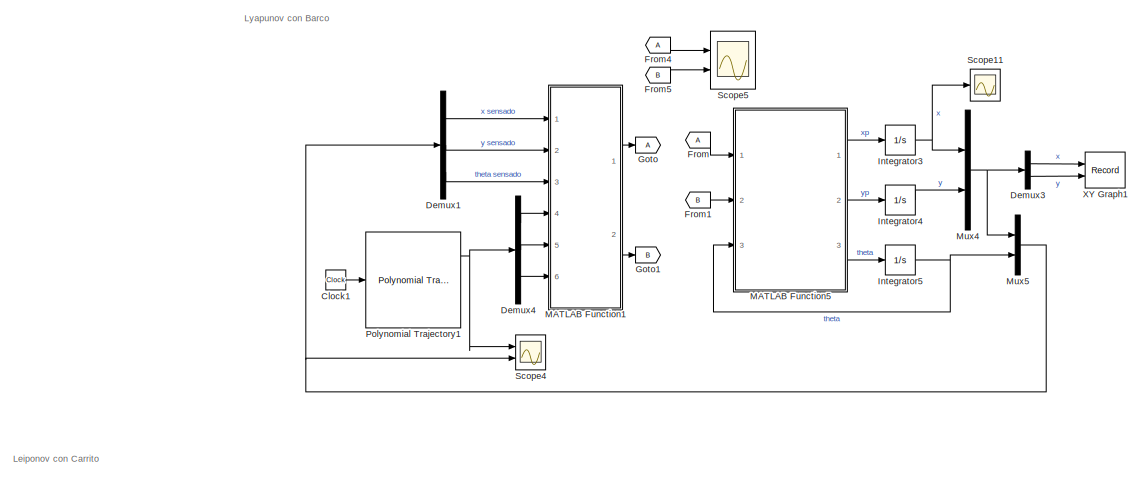
[diagram: root canvas - part 1/2, full width, top band]
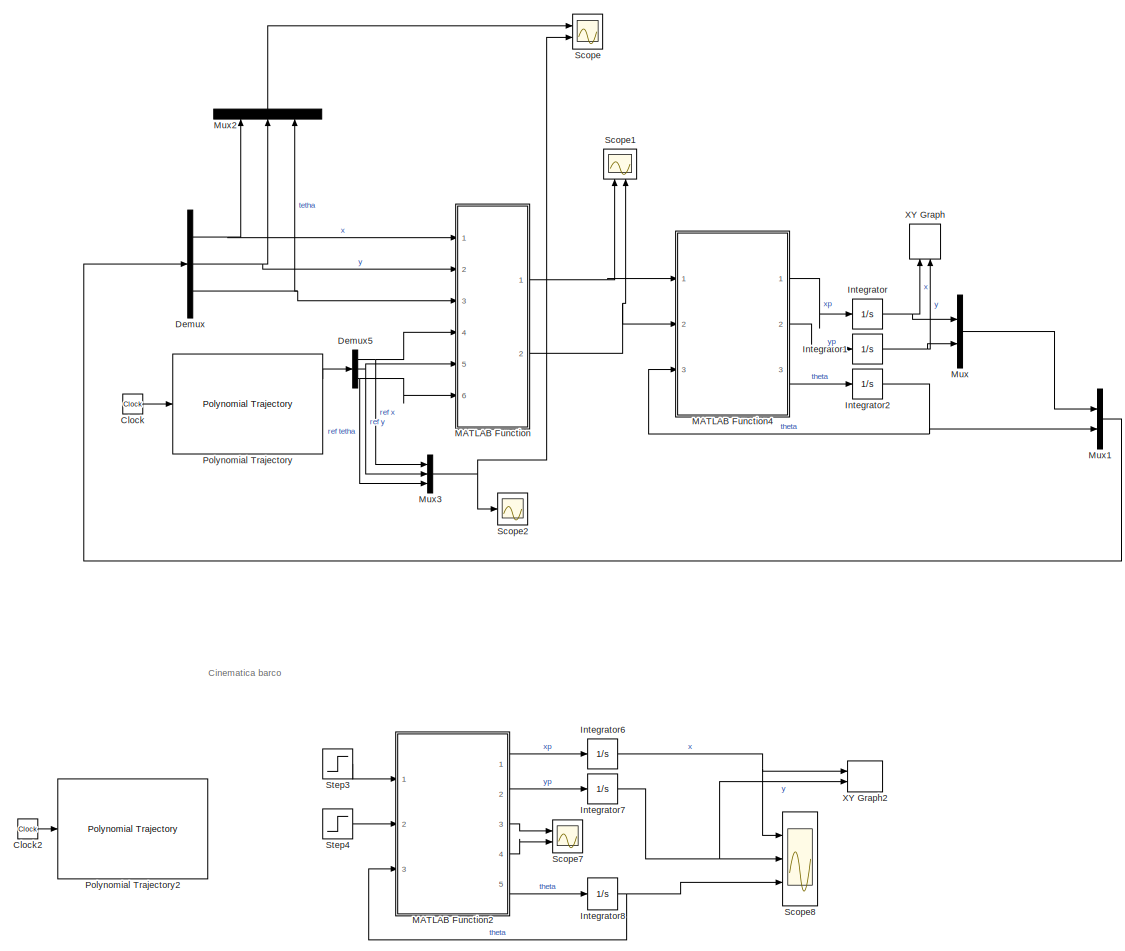
[diagram: root canvas - part 2/2, full width, bottom band]
MODEL slx_9371a2ca1c5e
KIND model
CONFIG AbsTol = auto
CONFIG EnableMultiTasking = off
CONFIG FixedStep = auto
CONFIG MaxStep = auto
CONFIG MinStep = auto
CONFIG RelTol = 1e-3
CONFIG SampleTimeConstraint = Unconstrained
CONFIG SolverName = VariableStepAuto
CONFIG StartTime = 0.0
CONFIG StopTime = 600
BLOCK [Clock] Clock
BLOCK [Clock] Clock1
BLOCK [Clock] Clock2
  Commented = on
BLOCK [Demux] Demux
  Outputs = 3
  Ports = [1, 3]
BLOCK [Demux] Demux1
  Outputs = 3
  Ports = [1, 3]
BLOCK [Demux] Demux3
  Outputs = 2
  Ports = [1, 2]
BLOCK [Demux] Demux4
  Outputs = 3
  Ports = [1, 3]
BLOCK [Demux] Demux5
  Outputs = 3
  Ports = [1, 3]
BLOCK [From] From
BLOCK [From] From1
  GotoTag = B
BLOCK [From] From4
BLOCK [From] From5
  GotoTag = B
BLOCK [Goto] Goto
BLOCK [Goto] Goto1
  GotoTag = B
BLOCK [Integrator] Integrator
  InitialCondition = 0.0001
  Ports = [1, 1]
BLOCK [Integrator] Integrator1
  Ports = [1, 1]
BLOCK [Integrator] Integrator2
  Ports = [1, 1]
BLOCK [Integrator] Integrator3
  InitialCondition = 10
  Ports = [1, 1]
BLOCK [Integrator] Integrator4
  InitialCondition = 5
  Ports = [1, 1]
BLOCK [Integrator] Integrator5
  InitialCondition = 2.7
  Ports = [1, 1]
BLOCK [Integrator] Integrator6
  Commented = on
  InitialCondition = 5
  Ports = [1, 1]
BLOCK [Integrator] Integrator7
  Commented = on
  InitialCondition = 5
  Ports = [1, 1]
BLOCK [Integrator] Integrator8
  Commented = on
  Ports = [1, 1]
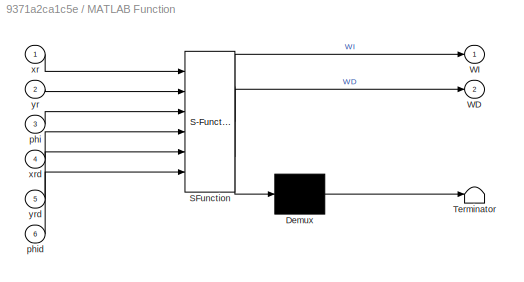
BLOCK [SubSystem] MATLAB Function
  ErrorFcn = Stateflow.Translate.translate
  PermitHierarchicalResolution = ExplicitOnly
  Ports = [6, 2]
  RequestExecContextInheritance = off
  SFBlockType = MATLAB Function
  TreatAsAtomicUnit = on
BLOCK [Demux] MATLAB Function/ Demux 
  Outputs = 1
  Ports = [1, 1]
BLOCK [S-Function] MATLAB Function/ SFunction 
  EnableBusSupport = on
  FunctionName = sf_sfun
  PortCounts = [6 3]
  Ports = [6, 3]
  SFcnIsStateOwnerBlock = off
  SFunctionDeploymentMode = off
  Tag = Stateflow S-Function 2
BLOCK [Terminator] MATLAB Function/ Terminator 
BLOCK [Outport] MATLAB Function/WD
  Port = 2
BLOCK [Outport] MATLAB Function/WI
BLOCK [Inport] MATLAB Function/phi
  Port = 3
BLOCK [Inport] MATLAB Function/phid
  Port = 6
BLOCK [Inport] MATLAB Function/xr
BLOCK [Inport] MATLAB Function/xrd
  Port = 4
BLOCK [Inport] MATLAB Function/yr
  Port = 2
BLOCK [Inport] MATLAB Function/yrd
  Port = 5
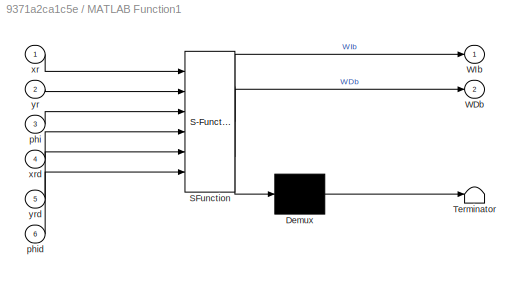
BLOCK [SubSystem] MATLAB Function1
  ErrorFcn = Stateflow.Translate.translate
  PermitHierarchicalResolution = ExplicitOnly
  Ports = [6, 2]
  RequestExecContextInheritance = off
  SFBlockType = MATLAB Function
  TreatAsAtomicUnit = on
BLOCK [Demux] MATLAB Function1/ Demux 
  Outputs = 1
  Ports = [1, 1]
BLOCK [S-Function] MATLAB Function1/ SFunction 
  EnableBusSupport = on
  FunctionName = sf_sfun
  PortCounts = [6 3]
  Ports = [6, 3]
  SFcnIsStateOwnerBlock = off
  SFunctionDeploymentMode = off
  Tag = Stateflow S-Function 1
BLOCK [Terminator] MATLAB Function1/ Terminator 
BLOCK [Outport] MATLAB Function1/WDb
  Port = 2
BLOCK [Outport] MATLAB Function1/WIb
BLOCK [Inport] MATLAB Function1/phi
  Port = 3
BLOCK [Inport] MATLAB Function1/phid
  Port = 6
BLOCK [Inport] MATLAB Function1/xr
BLOCK [Inport] MATLAB Function1/xrd
  Port = 4
BLOCK [Inport] MATLAB Function1/yr
  Port = 2
BLOCK [Inport] MATLAB Function1/yrd
  Port = 5
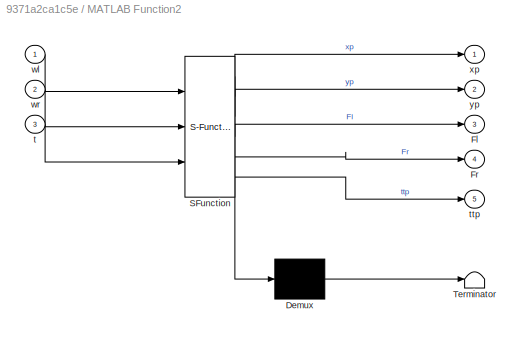
BLOCK [SubSystem] MATLAB Function2
  Commented = on
  ErrorFcn = Stateflow.Translate.translate
  PermitHierarchicalResolution = ExplicitOnly
  Ports = [3, 5]
  RequestExecContextInheritance = off
  SFBlockType = MATLAB Function
  TreatAsAtomicUnit = on
BLOCK [Demux] MATLAB Function2/ Demux 
  Outputs = 1
  Ports = [1, 1]
BLOCK [S-Function] MATLAB Function2/ SFunction 
  EnableBusSupport = on
  FunctionName = sf_sfun
  PortCounts = [3 6]
  Ports = [3, 6]
  SFcnIsStateOwnerBlock = off
  SFunctionDeploymentMode = off
  Tag = Stateflow S-Function 4
BLOCK [Terminator] MATLAB Function2/ Terminator 
BLOCK [Outport] MATLAB Function2/Fl
  Port = 3
BLOCK [Outport] MATLAB Function2/Fr
  Port = 4
BLOCK [Inport] MATLAB Function2/t
  Port = 3
BLOCK [Outport] MATLAB Function2/ttp
  Port = 5
BLOCK [Inport] MATLAB Function2/wl
BLOCK [Inport] MATLAB Function2/wr
  Port = 2
BLOCK [Outport] MATLAB Function2/xp
BLOCK [Outport] MATLAB Function2/yp
  Port = 2
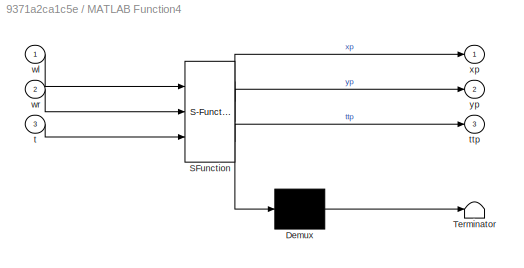
BLOCK [SubSystem] MATLAB Function4
  ErrorFcn = Stateflow.Translate.translate
  PermitHierarchicalResolution = ExplicitOnly
  Ports = [3, 3]
  RequestExecContextInheritance = off
  SFBlockType = MATLAB Function
  TreatAsAtomicUnit = on
BLOCK [Demux] MATLAB Function4/ Demux 
  Outputs = 1
  Ports = [1, 1]
BLOCK [S-Function] MATLAB Function4/ SFunction 
  EnableBusSupport = on
  FunctionName = sf_sfun
  PortCounts = [3 4]
  Ports = [3, 4]
  SFcnIsStateOwnerBlock = off
  SFunctionDeploymentMode = off
  Tag = Stateflow S-Function 3
BLOCK [Terminator] MATLAB Function4/ Terminator 
BLOCK [Inport] MATLAB Function4/t
  Port = 3
BLOCK [Outport] MATLAB Function4/ttp
  Port = 3
BLOCK [Inport] MATLAB Function4/wl
BLOCK [Inport] MATLAB Function4/wr
  Port = 2
BLOCK [Outport] MATLAB Function4/xp
BLOCK [Outport] MATLAB Function4/yp
  Port = 2
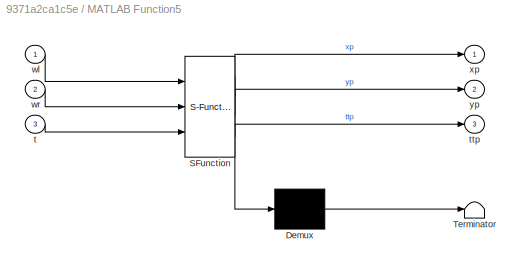
BLOCK [SubSystem] MATLAB Function5
  ErrorFcn = Stateflow.Translate.translate
  PermitHierarchicalResolution = ExplicitOnly
  Ports = [3, 3]
  RequestExecContextInheritance = off
  SFBlockType = MATLAB Function
  TreatAsAtomicUnit = on
BLOCK [Demux] MATLAB Function5/ Demux 
  Outputs = 1
  Ports = [1, 1]
BLOCK [S-Function] MATLAB Function5/ SFunction 
  EnableBusSupport = on
  FunctionName = sf_sfun
  PortCounts = [3 4]
  Ports = [3, 4]
  SFcnIsStateOwnerBlock = off
  SFunctionDeploymentMode = off
  Tag = Stateflow S-Function 6
BLOCK [Terminator] MATLAB Function5/ Terminator 
BLOCK [Inport] MATLAB Function5/t
  Port = 3
BLOCK [Outport] MATLAB Function5/ttp
  Port = 3
BLOCK [Inport] MATLAB Function5/wl
BLOCK [Inport] MATLAB Function5/wr
  Port = 2
BLOCK [Outport] MATLAB Function5/xp
BLOCK [Outport] MATLAB Function5/yp
  Port = 2
BLOCK [Mux] Mux
  DisplayOption = bar
  Inputs = 2
  Ports = [2, 1]
BLOCK [Mux] Mux1
  DisplayOption = bar
  Inputs = 2
  Ports = [2, 1]
BLOCK [Mux] Mux2
  DisplayOption = bar
  Inputs = 3
  NameLocation = right
  Ports = [3, 1]
BLOCK [Mux] Mux3
  DisplayOption = bar
  Inputs = 3
  Ports = [3, 1]
BLOCK [Mux] Mux4
  DisplayOption = bar
  Inputs = 2
  Ports = [2, 1]
BLOCK [Mux] Mux5
  DisplayOption = bar
  Inputs = 2
  Ports = [2, 1]
BLOCK [Reference] Polynomial Trajectory  REF=robotcorelib/Polynomial Trajectory
  Ports = [1, 3]
  SourceBlock = robotcorelib/Polynomial Trajectory
  SourceProductBaseCode = RO,NV,RR,UV
  SourceType = robotics.slcore.internal.block.PolyTrajSys
BLOCK [Reference] Polynomial Trajectory1  REF=robotcorelib/Polynomial Trajectory
  Ports = [1, 3]
  SourceBlock = robotcorelib/Polynomial Trajectory
  SourceProductBaseCode = RO,NV,RR,UV
  SourceType = robotics.slcore.internal.block.PolyTrajSys
BLOCK [Reference] Polynomial Trajectory2  REF=robotcorelib/Polynomial Trajectory
  Commented = on
  Ports = [1, 3]
  SourceBlock = robotcorelib/Polynomial Trajectory
  SourceProductBaseCode = RO,NV,RR,UV
  SourceType = robotics.slcore.internal.block.PolyTrajSys
BLOCK [Scope] Scope
  Floating = off
  NumInputPorts = 2
  Ports = [2]
  ScopeSpecificationString = Simulink.scopes.TimeScopeBlockCfg('CurrentConfiguration', extmgr.ConfigurationSet(extmgr.Configuration('Core','General UI',true),extmgr.Configuration('Core','Source UI',true),extmgr.Configuration('Sources','WiredSimulink',true),extmgr.Configuration('Visuals','Time Domain',true,'SerializedDisplays',{struct('MinYLimReal','-1.25','MaxYLimReal','11.25','YLabelReal','','MinYLimMag','0.00000','MaxYLimMa...<+1582ch>
BLOCK [Scope] Scope1
  Floating = off
  NameLocation = right
  NumInputPorts = 2
  Ports = [2]
  ScopeSpecificationString = Simulink.scopes.TimeScopeBlockCfg('CurrentConfiguration', extmgr.ConfigurationSet(extmgr.Configuration('Core','General UI',true),extmgr.Configuration('Core','Source UI',true),extmgr.Configuration('Sources','WiredSimulink',true,'DataLoggingVariableName','ScopeData1'),extmgr.Configuration('Visuals','Time Domain',true,'SerializedDisplays',{struct('MinYLimReal','-13.14108','MaxYLimReal','13.13955','YL...<+1641ch>
BLOCK [Scope] Scope11
  Floating = off
  NumInputPorts = 1
  Ports = [1]
  ScopeSpecificationString = Simulink.scopes.TimeScopeBlockCfg('CurrentConfiguration', extmgr.ConfigurationSet(extmgr.Configuration('Core','General UI',true),extmgr.Configuration('Core','Source UI',true),extmgr.Configuration('Sources','WiredSimulink',true,'DataLoggingVariableName','ScopeData1'),extmgr.Configuration('Visuals','Time Domain',true,'SerializedDisplays',{struct('MinYLimReal','-17.86946','MaxYLimReal','1.99661','YLa...<+1364ch>
BLOCK [Scope] Scope2
  Floating = off
  NumInputPorts = 1
  Ports = [1]
  ScopeSpecificationString = Simulink.scopes.TimeScopeBlockCfg('CurrentConfiguration', extmgr.ConfigurationSet(extmgr.Configuration('Core','General UI',true),extmgr.Configuration('Core','Source UI',true),extmgr.Configuration('Sources','WiredSimulink',true,'DataLoggingVariableName','ScopeData1'),extmgr.Configuration('Visuals','Time Domain',true,'SerializedDisplays',{struct('MinYLimReal','-0.625','MaxYLimReal','5.625','YLabelRe...<+1816ch>
BLOCK [Scope] Scope4
  Floating = off
  NumInputPorts = 2
  Ports = [2]
  ScopeSpecificationString = Simulink.scopes.TimeScopeBlockCfg('CurrentConfiguration', extmgr.ConfigurationSet(extmgr.Configuration('Core','General UI',true),extmgr.Configuration('Core','Source UI',true),extmgr.Configuration('Sources','WiredSimulink',true,'DataLoggingVariableName','ScopeData1'),extmgr.Configuration('Visuals','Time Domain',true,'SerializedDisplays',{struct('MinYLimReal','-1.47653','MaxYLimReal','13.28879','YLa...<+1696ch>
BLOCK [Scope] Scope5
  Floating = off
  NumInputPorts = 2
  Ports = [2]
  ScopeSpecificationString = Simulink.scopes.TimeScopeBlockCfg('CurrentConfiguration', extmgr.ConfigurationSet(extmgr.Configuration('Core','General UI',true),extmgr.Configuration('Core','Source UI',true),extmgr.Configuration('Sources','WiredSimulink',true,'DataLoggingVariableName','ScopeData2'),extmgr.Configuration('Visuals','Time Domain',true,'SerializedDisplays',{struct('MinYLimReal','-0.2777','MaxYLimReal','1.50894','YLabe...<+1605ch>
BLOCK [Scope] Scope7
  Commented = on
  Floating = off
  NumInputPorts = 2
  Ports = [2]
  ScopeSpecificationString = Simulink.scopes.TimeScopeBlockCfg('CurrentConfiguration', extmgr.ConfigurationSet(extmgr.Configuration('Core','General UI',true),extmgr.Configuration('Core','Source UI',true),extmgr.Configuration('Sources','WiredSimulink',true,'DataLoggingVariableName','ScopeData1'),extmgr.Configuration('Visuals','Time Domain',true,'SerializedDisplays',{struct('MinYLimReal','0.87624','MaxYLimReal','6.13368','YLabe...<+1423ch>
BLOCK [Scope] Scope8
  Commented = on
  Floating = off
  NumInputPorts = 3
  Ports = [3]
  ScopeSpecificationString = Simulink.scopes.TimeScopeBlockCfg('CurrentConfiguration', extmgr.ConfigurationSet(extmgr.Configuration('Core','General UI',true),extmgr.Configuration('Core','Source UI',true),extmgr.Configuration('Sources','WiredSimulink',true,'DataLoggingVariableName','ScopeData2'),extmgr.Configuration('Visuals','Time Domain',true,'SerializedDisplays',{struct('MinYLimReal','-94.05485','MaxYLimReal','58.41355','YL...<+1489ch>
BLOCK [Step] Step3
  After = 10
  Commented = on
  SampleTime = 0
  Time = 0
BLOCK [Step] Step4
  After = 5
  Commented = on
  SampleTime = 0
  Time = 0
BLOCK [Record] XY Graph
  CompatibilityTag = XY
  FileSettingsInternal = {"entries":[{"content":{"excelSettings":{"content":{},"type":"Streamout.ExcelSettings"}},"type":"Streamout.FileSettingStorage","uuid":"7295fb2b-ff57-43ce-bb86-fdd5f6b61bc5"}],"packageUris":["http://schema.mathworks.com/mf0/streamout_blocks/R2020a"],"version":"1.0"}
  Layout = [1 1]
  NameLocation = right
  Ports = [2]
  SignalsInternal = {"entries":[{"content":{"signals":[{"content":{"blockPath":["Diagrma_Base2/XY Graph"],"channel":[],"dimensions":[1],"domain":"Diagrma_Base2/XY Graph","lineColor":"#a2142f","plots":[1],"port":1,"sid":[],"signalID":17,"signalName":"x"},"type":"RecordBlkView.Signal","uuid":"777eca82-6aae-4ff1-8555-769b58b9b1a9"},{"content":{"blockPath":["Diagrma_Base2/XY Graph"],"channel":[],"dimensions":[1],"domain"...<+363ch>
  VisualizationBindings = {"xyplotplugin":{"info":[{"series":[{"bindingParametersList":[{"parameter":"X-Axis","signalID":17,"signalName":"x"},{"parameter":"Y-Axis","signalID":20,"signalName":"y"}],"seriesID":12843}],"subplotID":1}]}}
BLOCK [Record] XY Graph1
  CompatibilityTag = XY
  FileSettingsInternal = {"entries":[{"content":{"excelSettings":{"content":{},"type":"Streamout.ExcelSettings"}},"type":"Streamout.FileSettingStorage","uuid":"a2b37473-8bde-4ada-a6ad-28720db650b0"}],"packageUris":["http://schema.mathworks.com/mf0/streamout_blocks/R2020a"],"version":"1.0"}
  Layout = [1 1]
  Ports = [2]
  SignalsInternal = {"entries":[{"content":{"signals":[{"content":{"blockPath":["Diagrma_Base2/XY Graph1"],"channel":[],"dimensions":[1],"domain":"Diagrma_Base2/XY Graph1","lineColor":"#a2142f","plots":[1],"port":1,"sid":[],"signalID":9,"signalName":"x"},"type":"RecordBlkView.Signal","uuid":"0c049299-8119-4ead-a456-183b3d2d228e"},{"content":{"blockPath":["Diagrma_Base2/XY Graph1"],"channel":[],"dimensions":[1],"domai...<+366ch>
  VisualizationBindings = {"xyplotplugin":{"info":[{"series":[{"bindingParametersList":[{"parameter":"X-Axis","signalID":9,"signalName":"x"},{"parameter":"Y-Axis","signalID":12,"signalName":"y"}],"seriesID":46415}],"subplotID":1}]}}
BLOCK [Record] XY Graph2
  Commented = on
  CompatibilityTag = XY
  FileSettingsInternal = {"entries":[{"content":{"excelSettings":{"content":{},"type":"Streamout.ExcelSettings"}},"type":"Streamout.FileSettingStorage","uuid":"b3166ed0-6056-44fb-bfad-bac826df8843"}],"packageUris":["http://schema.mathworks.com/mf0/streamout_blocks/R2020a"],"version":"1.0"}
  Layout = [1 1]
  Ports = [2]
  SignalsInternal = {"entries":[{"content":{"signals":[{"content":{"blockPath":["Diagrma_Base2/XY Graph2"],"channel":[],"dimensions":[1],"domain":"Diagrma_Base2/XY Graph2","lineColor":"#a2142f","plots":[1],"port":1,"sid":[],"signalID":25,"signalName":"x"},"type":"RecordBlkView.Signal","uuid":"49568a3e-d36f-41cf-8f23-ccc7c9185f6e"},{"content":{"blockPath":["Diagrma_Base2/XY Graph2"],"channel":[],"dimensions":[1],"doma...<+367ch>
  VisualizationBindings = {"xyplotplugin":{"info":[{"series":[{"bindingParametersList":[{"parameter":"X-Axis","signalID":25,"signalName":"x"},{"parameter":"Y-Axis","signalID":28,"signalName":"y"}],"seriesID":189}],"subplotID":1}]}}
ANNOTATION (root): Cinematica barco
ANNOTATION (root): Leiponov con Carrito
ANNOTATION (root): Lyapunov con Barco
LINE Clock1:1 -> Polynomial Trajectory1:1
LINE Clock2:1 -> Polynomial Trajectory2:1
LINE Clock:1 -> Polynomial Trajectory:1
LINE Demux1:1 -> MATLAB Function1:1
LINE Demux1:2 -> MATLAB Function1:2
LINE Demux1:3 -> MATLAB Function1:3
LINE Demux3:1 -> XY Graph1:1
LINE Demux3:2 -> XY Graph1:2
LINE Demux4:1 -> MATLAB Function1:4
LINE Demux4:2 -> MATLAB Function1:5
LINE Demux4:3 -> MATLAB Function1:6
NET Demux5:1 -> MATLAB Function:4, Mux3:1
NET Demux5:2 -> MATLAB Function:5, Mux3:2
NET Demux5:3 -> MATLAB Function:6, Mux3:3
NET Demux:1 -> MATLAB Function:1, Mux2:1
NET Demux:2 -> MATLAB Function:2, Mux2:2
NET Demux:3 -> MATLAB Function:3, Mux2:3
LINE From1:1 -> MATLAB Function5:2
LINE From4:1 -> Scope5:1
LINE From5:1 -> Scope5:2
LINE From:1 -> MATLAB Function5:1
NET Integrator1:1 -> Mux:2, XY Graph:2
NET Integrator2:1 -> MATLAB Function4:3, Mux1:2
NET Integrator3:1 -> Mux4:1, Scope11:1
LINE Integrator4:1 -> Mux4:2
NET Integrator5:1 -> MATLAB Function5:3, Mux5:2
NET Integrator6:1 -> Scope8:1, XY Graph2:1
NET Integrator7:1 -> Scope8:2, XY Graph2:2
NET Integrator8:1 -> MATLAB Function2:3, Scope8:3
NET Integrator:1 -> Mux:1, XY Graph:1
LINE MATLAB Function1:1 -> Goto:1
LINE MATLAB Function1:2 -> Goto1:1
LINE MATLAB Function2:1 -> Integrator6:1
LINE MATLAB Function2:2 -> Integrator7:1
LINE MATLAB Function2:3 -> Scope7:1
LINE MATLAB Function2:4 -> Scope7:2
LINE MATLAB Function2:5 -> Integrator8:1
LINE MATLAB Function4:1 -> Integrator:1
LINE MATLAB Function4:2 -> Integrator1:1
LINE MATLAB Function4:3 -> Integrator2:1
LINE MATLAB Function5:1 -> Integrator3:1
LINE MATLAB Function5:2 -> Integrator4:1
LINE MATLAB Function5:3 -> Integrator5:1
NET MATLAB Function:1 -> MATLAB Function4:1, Scope1:1
NET MATLAB Function:2 -> MATLAB Function4:2, Scope1:2
LINE Mux1:1 -> Demux:1
LINE Mux2:1 -> Scope:1
NET Mux3:1 -> Scope2:1, Scope:2
NET Mux4:1 -> Demux3:1, Mux5:1
NET Mux5:1 -> Demux1:1, Scope4:2
LINE Mux:1 -> Mux1:1
NET Polynomial Trajectory1:1 -> Demux4:1, Scope4:1
LINE Polynomial Trajectory:1 -> Demux5:1
LINE Step3:1 -> MATLAB Function2:1
LINE Step4:1 -> MATLAB Function2:2
note: NET lines group one-source signal fan-out (src -> all destinations, sorted); 1:1 wires keep LINE
CHART MATLAB Function1 states=1 transitions=1
  STATE_LABEL 'eML_blk_kernel()'
  STATE_LABEL 'SCRIPT:\nfunction [WIb, WDb]  = fcn(xr, yr, phi, xrd, yrd, phid)\n%------------valores barco---------\nLb = 0.87;\nDb = 0.435;\nK1 = 1;\nK2 = 1;\nq2 = 1;\n\n% 4) Control\n%a) Errores de control\nl = sqrt((xrd - xr)^2 + (yrd - yr)^2);\nzeta = atan2((yrd - yr), (xrd - xr)) - phi;\npsi = atan2((yrd - yr), (xrd - xr)) - phid;\n%b) Ley de control\nu = K1 * cos(zeta) * l; % Velocidad lineal de entrada\nw = K2 * zeta + ...<+447ch>'
CHART MATLAB Function states=1 transitions=1
  STATE_LABEL 'eML_blk_kernel()'
  STATE_LABEL 'SCRIPT:\nfunction [WI, WD]  = fcn(xr, yr, phi, xrd, yrd, phid)\nL = 0.87;\nD = 0.435;\nR = 0.130;\n% 2) Condiciones iniciales\n% xr, yr, phi\n\n% 3) Referencias deseadas\n% xrd, yrd, phid\n\nK1 = 1;\nK2 = 1;\nq2 = 1;\n\n% 4) Control\n%a) Errores de control\nl = sqrt((xrd - xr)^2 + (yrd - yr)^2);\nzeta = atan2((yrd - yr), (xrd - xr)) - phi;\npsi = atan2((yrd - yr), (xrd - xr)) - phid;\n\n%b) Ley de control\nu = K1 * cos...<+336ch>'
CHART MATLAB Function4 states=1 transitions=1
  STATE_LABEL 'eML_blk_kernel()'
  STATE_LABEL 'SCRIPT:\nfunction [xp,yp,ttp] = fcn(wl,wr,t)\nR = 0.06;\nL = 0.6;\n\nW = [wr; wl];\nM = [(R*cos(t)/2) (R*cos(t)/2);\n     (R*sin(t)/2) (R*sin(t)/2);\n      R/L          -R/L] * W;\n\nxp = M(1,1);\nyp = M(2,1);\nttp = M(3,1);\n\n'
CHART MATLAB Function2 states=1 transitions=1
  STATE_LABEL 'eML_blk_kernel()'
  STATE_LABEL 'SCRIPT:\nfunction [xp,yp, Fl,Fr,ttp] = fcn(wl,wr,t)\npsi=t;\n% Parámetros del barco\nm = 36.38;           % masa total del barco (kg)\nIz = 16485605.66/1000000;          % momento de inercia del barco alrededor del eje vertical (kg*m^2)\ncg = 0.05;             % distancia desde el centro del barco hasta el centro de masa (m)\nd = 0.435;            % distancia entre el centro del barco y el eje de la héli...<+1049ch>'
CHART MATLAB Function5 states=1 transitions=1
  STATE_LABEL 'eML_blk_kernel()'
  STATE_LABEL 'SCRIPT:\nfunction [xp,yp,ttp] = fcn(wl,wr,t)\nR = 0.130;\nL = 0.87;\n\nW = [wr; wl];\nM = [(R*cos(t)/2) (R*cos(t)/2);\n     (R*sin(t)/2) (R*sin(t)/2);\n      R/L          -R/L] * W;\n\nxp = M(1,1);\nyp = M(2,1);\nttp = M(3,1);'
CHART  states=0 transitions=0
CHART  states=0 transitions=0
CHART  states=0 transitions=0
CHART  states=0 transitions=0
CHART  states=0 transitions=0
